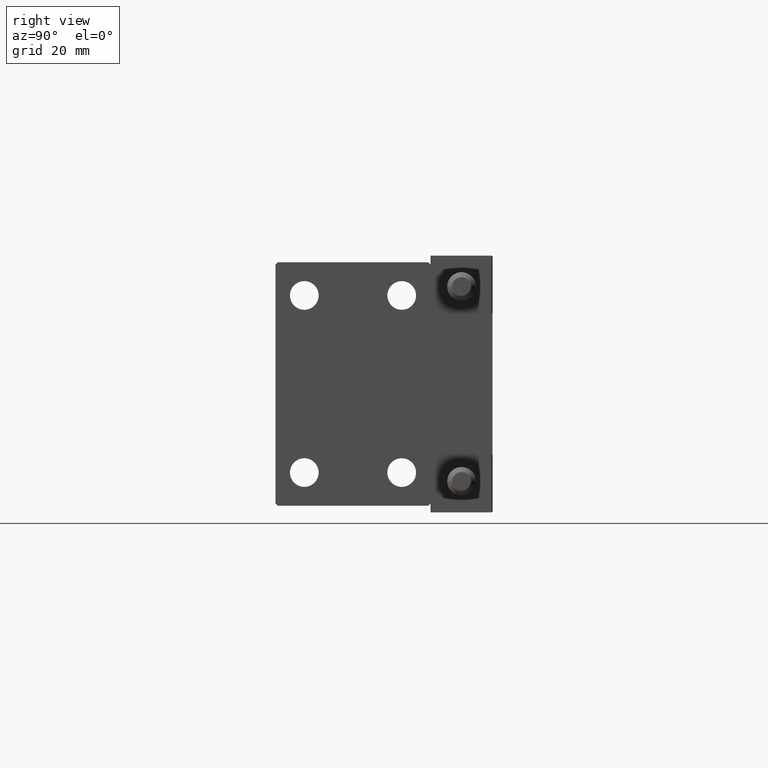
[diagram: clean part render]
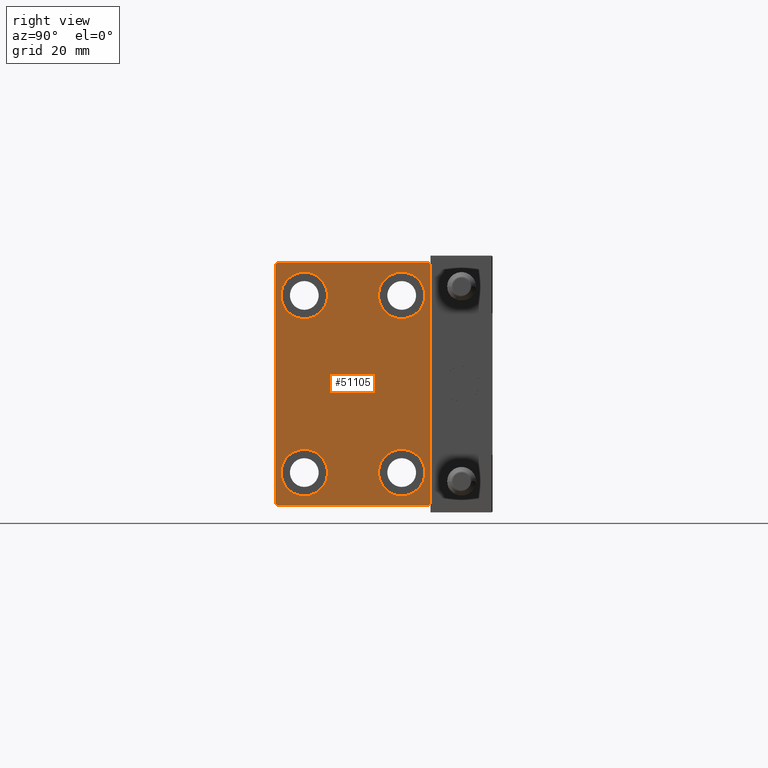
[diagram: same view with one face highlighted and labeled with its STEP entity id]
A machine part, right view. The second image highlights one B-rep face of the part: STEP entity #51105.
In plain terms, the highlighted planar face has unit normal (1, 0, 0).
Its self-contained STEP definition (entity closure, byte-faithful):
#283 = EDGE_LOOP ( 'NONE', ( #25530, #46765 ) ) ;
#319 = DIRECTION ( 'NONE',  ( -1.000000000000000000, -0.000000000000000000, -0.000000000000000000 ) ) ;
#436 = CIRCLE ( 'NONE', #24348, 5.250000000000000888 ) ;
#680 = DIRECTION ( 'NONE',  ( 0.000000000000000000, -0.7071067811865474617, -0.7071067811865474617 ) ) ;
#805 = FACE_OUTER_BOUND ( 'NONE', #25513, .T. ) ;
#960 = EDGE_CURVE ( 'NONE', #23998, #42541, #31435, .T. ) ;
#1002 = CARTESIAN_POINT ( 'NONE',  ( 56.00000000000000000, -11.00000000000000355, 25.25000000000000000 ) ) ;
#1048 = FACE_BOUND ( 'NONE', #13471, .T. ) ;
#1707 = ORIENTED_EDGE ( 'NONE', *, *, #15957, .T. ) ;
#1785 = CARTESIAN_POINT ( 'NONE',  ( 56.00000000000000000, -16.99999999999999289, 27.49999999999999645 ) ) ;
#1894 = CIRCLE ( 'NONE', #4387, 5.250000000000000888 ) ;
#2228 = ORIENTED_EDGE ( 'NONE', *, *, #960, .T. ) ;
#2568 = DIRECTION ( 'NONE',  ( 0.000000000000000000, 1.000000000000000000, 0.000000000000000000 ) ) ;
#2964 = AXIS2_PLACEMENT_3D ( 'NONE', #3423, #23066, #26684 ) ;
#3233 = CARTESIAN_POINT ( 'NONE',  ( 56.00000000000000000, -11.00000000000000355, -25.25000000000000000 ) ) ;
#3423 = CARTESIAN_POINT ( 'NONE',  ( 56.00000000000000000, -11.00000000000000355, -20.00000000000000000 ) ) ;
#3682 = CARTESIAN_POINT ( 'NONE',  ( 56.00000000000000000, -16.99999999999999289, -27.50000000000000355 ) ) ;
#3977 = VERTEX_POINT ( 'NONE', #1002 ) ;
#4387 = AXIS2_PLACEMENT_3D ( 'NONE', #8984, #13102, #28858 ) ;
#4426 = FACE_BOUND ( 'NONE', #283, .T. ) ;
#4951 = CARTESIAN_POINT ( 'NONE',  ( 56.00000000000000000, 22.25000000000000711, -22.25000000000000711 ) ) ;
#5917 = DIRECTION ( 'NONE',  ( 0.000000000000000000, 0.000000000000000000, 1.000000000000000000 ) ) ;
#5993 = DIRECTION ( 'NONE',  ( 0.000000000000000000, 0.000000000000000000, 1.000000000000000000 ) ) ;
#7232 = VERTEX_POINT ( 'NONE', #24729 ) ;
#7531 = VERTEX_POINT ( 'NONE', #23390 ) ;
#7659 = CARTESIAN_POINT ( 'NONE',  ( 56.00000000000000000, 17.00000000000000711, -27.50000000000000355 ) ) ;
#8751 = EDGE_CURVE ( 'NONE', #20430, #7531, #19021, .T. ) ;
#8911 = VERTEX_POINT ( 'NONE', #14492 ) ;
#8984 = CARTESIAN_POINT ( 'NONE',  ( 56.00000000000000000, -11.00000000000000355, 20.00000000000000000 ) ) ;
#9534 = CIRCLE ( 'NONE', #38401, 5.250000000000000888 ) ;
#9834 = LINE ( 'NONE', #17841, #41423 ) ;
#12056 = AXIS2_PLACEMENT_3D ( 'NONE', #12439, #28195, #43970 ) ;
#12439 = CARTESIAN_POINT ( 'NONE',  ( 56.00000000000000000, 0.000000000000000000, 0.000000000000000000 ) ) ;
#12546 = ORIENTED_EDGE ( 'NONE', *, *, #20699, .T. ) ;
#12652 = VERTEX_POINT ( 'NONE', #19102 ) ;
#12697 = CIRCLE ( 'NONE', #50678, 5.250000000000000888 ) ;
#13102 = DIRECTION ( 'NONE',  ( -1.000000000000000000, -0.000000000000000000, -0.000000000000000000 ) ) ;
#13471 = EDGE_LOOP ( 'NONE', ( #46941, #44376 ) ) ;
#13832 = DIRECTION ( 'NONE',  ( -1.000000000000000000, -0.000000000000000000, -0.000000000000000000 ) ) ;
#14006 = EDGE_CURVE ( 'NONE', #8911, #36494, #33922, .T. ) ;
#14410 = CARTESIAN_POINT ( 'NONE',  ( 56.00000000000000000, 22.25000000000000355, 22.25000000000000355 ) ) ;
#14457 = EDGE_LOOP ( 'NONE', ( #12546, #26820 ) ) ;
#14492 = CARTESIAN_POINT ( 'NONE',  ( 56.00000000000000000, 11.00000000000000355, -14.75000000000000000 ) ) ;
#14983 = DIRECTION ( 'NONE',  ( 0.000000000000000000, 0.000000000000000000, -1.000000000000000000 ) ) ;
#15227 = EDGE_CURVE ( 'NONE', #48767, #33092, #49822, .T. ) ;
#15891 = EDGE_CURVE ( 'NONE', #23100, #50547, #48116, .T. ) ;
#15957 = EDGE_CURVE ( 'NONE', #12652, #29115, #9834, .T. ) ;
#16296 = EDGE_CURVE ( 'NONE', #33092, #23998, #29605, .T. ) ;
#17622 = DIRECTION ( 'NONE',  ( -1.000000000000000000, -0.000000000000000000, -0.000000000000000000 ) ) ;
#17841 = CARTESIAN_POINT ( 'NONE',  ( 56.00000000000000000, -22.25000000000000355, -22.25000000000000355 ) ) ;
#19019 = ORIENTED_EDGE ( 'NONE', *, *, #19173, .T. ) ;
#19021 = CIRCLE ( 'NONE', #46277, 5.250000000000000888 ) ;
#19102 = CARTESIAN_POINT ( 'NONE',  ( 56.00000000000000000, -17.50000000000000000, -26.99999999999999645 ) ) ;
#19173 = EDGE_CURVE ( 'NONE', #50547, #48767, #23183, .T. ) ;
#19986 = VECTOR ( 'NONE', #32327, 1000.000000000000114 ) ;
#20049 = CARTESIAN_POINT ( 'NONE',  ( 56.00000000000000000, -11.00000000000000355, 20.00000000000000000 ) ) ;
#20198 = FACE_BOUND ( 'NONE', #42275, .T. ) ;
#20430 = VERTEX_POINT ( 'NONE', #3233 ) ;
#20699 = EDGE_CURVE ( 'NONE', #36494, #8911, #12697, .T. ) ;
#21083 = CIRCLE ( 'NONE', #34295, 5.250000000000000888 ) ;
#21106 = VECTOR ( 'NONE', #680, 1000.000000000000114 ) ;
#22667 = DIRECTION ( 'NONE',  ( 0.000000000000000000, -1.261617073437677752E-16, 1.000000000000000000 ) ) ;
#23066 = DIRECTION ( 'NONE',  ( -1.000000000000000000, -0.000000000000000000, -0.000000000000000000 ) ) ;
#23100 = VERTEX_POINT ( 'NONE', #7659 ) ;
#23183 = LINE ( 'NONE', #38926, #47364 ) ;
#23390 = CARTESIAN_POINT ( 'NONE',  ( 56.00000000000000000, -11.00000000000000355, -14.75000000000000000 ) ) ;
#23998 = VERTEX_POINT ( 'NONE', #1785 ) ;
#24077 = FACE_BOUND ( 'NONE', #14457, .T. ) ;
#24348 = AXIS2_PLACEMENT_3D ( 'NONE', #20049, #43572, #47452 ) ;
#24400 = CARTESIAN_POINT ( 'NONE',  ( 56.00000000000000000, 11.00000000000000355, 14.75000000000000000 ) ) ;
#24594 = CARTESIAN_POINT ( 'NONE',  ( 56.00000000000000000, 11.00000000000000355, 25.25000000000000000 ) ) ;
#24729 = CARTESIAN_POINT ( 'NONE',  ( 56.00000000000000000, -11.00000000000000355, 14.75000000000000000 ) ) ;
#25254 = CIRCLE ( 'NONE', #2964, 5.250000000000000888 ) ;
#25513 = EDGE_LOOP ( 'NONE', ( #51163, #2228, #40019, #1707, #35479, #30663, #19019, #31668 ) ) ;
#25530 = ORIENTED_EDGE ( 'NONE', *, *, #45949, .T. ) ;
#25561 = CARTESIAN_POINT ( 'NONE',  ( 56.00000000000000000, 11.00000000000000355, 20.00000000000000000 ) ) ;
#26684 = DIRECTION ( 'NONE',  ( 0.000000000000000000, 0.000000000000000000, 1.000000000000000000 ) ) ;
#26820 = ORIENTED_EDGE ( 'NONE', *, *, #14006, .T. ) ;
#27281 = VERTEX_POINT ( 'NONE', #24594 ) ;
#28195 = DIRECTION ( 'NONE',  ( 1.000000000000000000, 0.000000000000000000, 0.000000000000000000 ) ) ;
#28198 = VECTOR ( 'NONE', #45939, 1000.000000000000114 ) ;
#28858 = DIRECTION ( 'NONE',  ( 0.000000000000000000, 0.000000000000000000, 1.000000000000000000 ) ) ;
#29115 = VERTEX_POINT ( 'NONE', #3682 ) ;
#29345 = CARTESIAN_POINT ( 'NONE',  ( 56.00000000000000000, 17.50000000000000000, 27.50000000000000355 ) ) ;
#29605 = LINE ( 'NONE', #29345, #48061 ) ;
#30275 = VECTOR ( 'NONE', #2568, 1000.000000000000000 ) ;
#30663 = ORIENTED_EDGE ( 'NONE', *, *, #15891, .T. ) ;
#30909 = EDGE_CURVE ( 'NONE', #29115, #23100, #31821, .T. ) ;
#31435 = LINE ( 'NONE', #42823, #21106 ) ;
#31593 = CARTESIAN_POINT ( 'NONE',  ( 56.00000000000000000, -11.00000000000000355, -20.00000000000000000 ) ) ;
#31668 = ORIENTED_EDGE ( 'NONE', *, *, #15227, .T. ) ;
#31821 = LINE ( 'NONE', #47609, #30275 ) ;
#32004 = CARTESIAN_POINT ( 'NONE',  ( 56.00000000000000000, -17.50000000000000000, 26.99999999999998934 ) ) ;
#32327 = DIRECTION ( 'NONE',  ( -0.000000000000000000, 0.7071067811865474617, 0.7071067811865474617 ) ) ;
#32344 = DIRECTION ( 'NONE',  ( 0.000000000000000000, 0.000000000000000000, 1.000000000000000000 ) ) ;
#32835 = CARTESIAN_POINT ( 'NONE',  ( 56.00000000000000000, 16.99999999999999289, 27.50000000000000355 ) ) ;
#33092 = VERTEX_POINT ( 'NONE', #32835 ) ;
#33198 = DIRECTION ( 'NONE',  ( 0.000000000000000000, -1.000000000000000000, -1.982541115402065110E-16 ) ) ;
#33439 = CARTESIAN_POINT ( 'NONE',  ( 56.00000000000000000, 11.00000000000000355, -20.00000000000000000 ) ) ;
#33581 = DIRECTION ( 'NONE',  ( -0.000000000000000000, 0.7071067811865474617, -0.7071067811865474617 ) ) ;
#33922 = CIRCLE ( 'NONE', #36404, 5.250000000000000888 ) ;
#33999 = CARTESIAN_POINT ( 'NONE',  ( 56.00000000000000000, 17.50000000000000711, -27.00000000000000355 ) ) ;
#34202 = DIRECTION ( 'NONE',  ( 0.000000000000000000, 0.000000000000000000, 1.000000000000000000 ) ) ;
#34295 = AXIS2_PLACEMENT_3D ( 'NONE', #41385, #17622, #5993 ) ;
#35447 = DIRECTION ( 'NONE',  ( 0.000000000000000000, 0.000000000000000000, 1.000000000000000000 ) ) ;
#35479 = ORIENTED_EDGE ( 'NONE', *, *, #30909, .T. ) ;
#36404 = AXIS2_PLACEMENT_3D ( 'NONE', #33439, #13832, #34202 ) ;
#36494 = VERTEX_POINT ( 'NONE', #44390 ) ;
#37966 = CARTESIAN_POINT ( 'NONE',  ( 56.00000000000000000, -17.50000000000000000, 27.49999999999999645 ) ) ;
#38401 = AXIS2_PLACEMENT_3D ( 'NONE', #25561, #41306, #5917 ) ;
#38926 = CARTESIAN_POINT ( 'NONE',  ( 56.00000000000000000, 17.50000000000000711, -27.50000000000000355 ) ) ;
#39588 = CARTESIAN_POINT ( 'NONE',  ( 56.00000000000000000, 11.00000000000000355, -20.00000000000000000 ) ) ;
#40019 = ORIENTED_EDGE ( 'NONE', *, *, #48062, .T. ) ;
#40128 = VECTOR ( 'NONE', #14983, 1000.000000000000000 ) ;
#40904 = EDGE_CURVE ( 'NONE', #3977, #7232, #1894, .T. ) ;
#41306 = DIRECTION ( 'NONE',  ( -1.000000000000000000, -0.000000000000000000, -0.000000000000000000 ) ) ;
#41385 = CARTESIAN_POINT ( 'NONE',  ( 56.00000000000000000, 11.00000000000000355, 20.00000000000000000 ) ) ;
#41423 = VECTOR ( 'NONE', #33581, 1000.000000000000114 ) ;
#42275 = EDGE_LOOP ( 'NONE', ( #50507, #45984 ) ) ;
#42541 = VERTEX_POINT ( 'NONE', #32004 ) ;
#42823 = CARTESIAN_POINT ( 'NONE',  ( 56.00000000000000000, -22.24999999999999645, 22.24999999999999645 ) ) ;
#43109 = VERTEX_POINT ( 'NONE', #24400 ) ;
#43572 = DIRECTION ( 'NONE',  ( -1.000000000000000000, -0.000000000000000000, -0.000000000000000000 ) ) ;
#43970 = DIRECTION ( 'NONE',  ( 0.000000000000000000, 0.000000000000000000, -1.000000000000000000 ) ) ;
#44376 = ORIENTED_EDGE ( 'NONE', *, *, #47753, .T. ) ;
#44390 = CARTESIAN_POINT ( 'NONE',  ( 56.00000000000000000, 11.00000000000000355, -25.25000000000000000 ) ) ;
#45150 = EDGE_CURVE ( 'NONE', #7232, #3977, #436, .T. ) ;
#45939 = DIRECTION ( 'NONE',  ( -0.000000000000000000, -0.7071067811865474617, 0.7071067811865474617 ) ) ;
#45949 = EDGE_CURVE ( 'NONE', #43109, #27281, #9534, .T. ) ;
#45984 = ORIENTED_EDGE ( 'NONE', *, *, #40904, .T. ) ;
#46277 = AXIS2_PLACEMENT_3D ( 'NONE', #31593, #47889, #32344 ) ;
#46513 = LINE ( 'NONE', #37966, #40128 ) ;
#46665 = CARTESIAN_POINT ( 'NONE',  ( 56.00000000000000000, 17.50000000000000000, 26.99999999999999645 ) ) ;
#46765 = ORIENTED_EDGE ( 'NONE', *, *, #49802, .T. ) ;
#46941 = ORIENTED_EDGE ( 'NONE', *, *, #8751, .T. ) ;
#47364 = VECTOR ( 'NONE', #22667, 1000.000000000000000 ) ;
#47452 = DIRECTION ( 'NONE',  ( 0.000000000000000000, 0.000000000000000000, 1.000000000000000000 ) ) ;
#47609 = CARTESIAN_POINT ( 'NONE',  ( 56.00000000000000000, -17.50000000000000000, -27.50000000000000355 ) ) ;
#47753 = EDGE_CURVE ( 'NONE', #7531, #20430, #25254, .T. ) ;
#47854 = PLANE ( 'NONE',  #12056 ) ;
#47889 = DIRECTION ( 'NONE',  ( -1.000000000000000000, -0.000000000000000000, -0.000000000000000000 ) ) ;
#48061 = VECTOR ( 'NONE', #33198, 1000.000000000000000 ) ;
#48062 = EDGE_CURVE ( 'NONE', #42541, #12652, #46513, .T. ) ;
#48116 = LINE ( 'NONE', #4951, #19986 ) ;
#48767 = VERTEX_POINT ( 'NONE', #46665 ) ;
#49802 = EDGE_CURVE ( 'NONE', #27281, #43109, #21083, .T. ) ;
#49822 = LINE ( 'NONE', #14410, #28198 ) ;
#50507 = ORIENTED_EDGE ( 'NONE', *, *, #45150, .T. ) ;
#50547 = VERTEX_POINT ( 'NONE', #33999 ) ;
#50678 = AXIS2_PLACEMENT_3D ( 'NONE', #39588, #319, #35447 ) ;
#51105 = ADVANCED_FACE ( 'NONE', ( #24077, #20198, #4426, #1048, #805 ), #47854, .T. ) ;
#51163 = ORIENTED_EDGE ( 'NONE', *, *, #16296, .T. ) ;